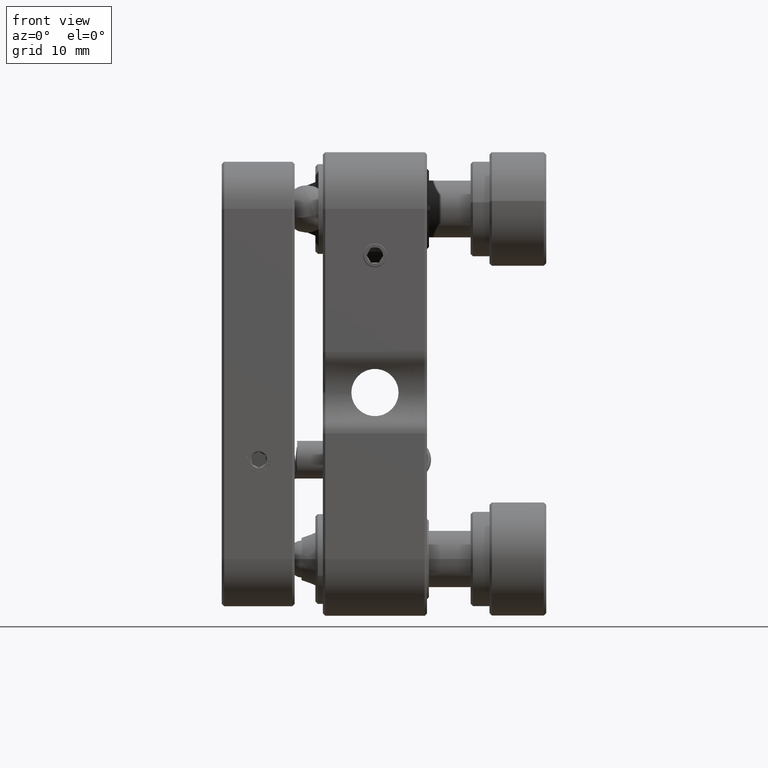
[diagram: clean part render]
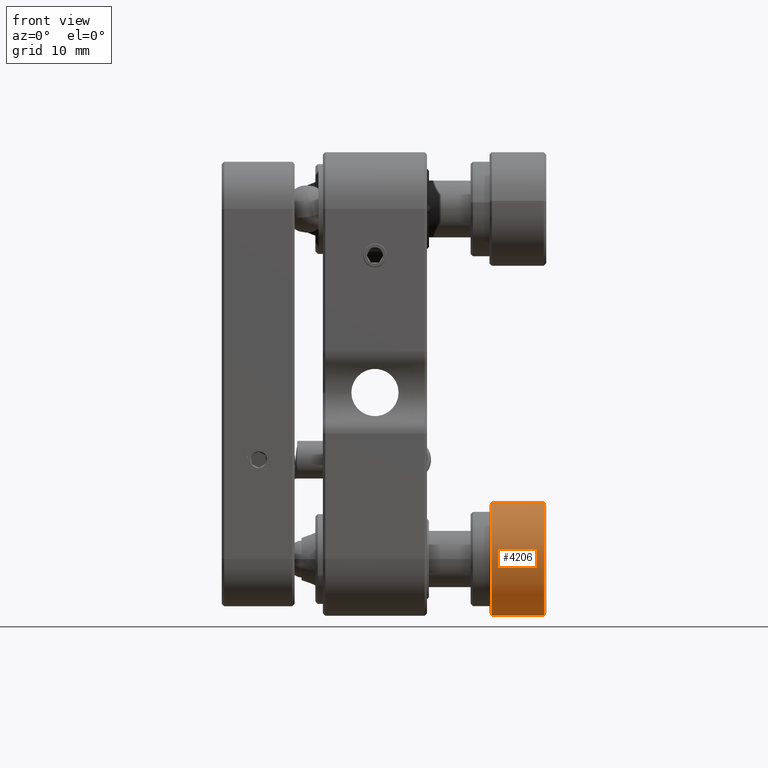
[diagram: same view with one face highlighted and labeled with its STEP entity id]
A machine part, front view. The second image highlights one B-rep face of the part: STEP entity #4206.
In plain terms, the highlighted cylindrical surface (partial cylindrical patch) has radius 6 mm, axis along (1, 0, 0).
Its self-contained STEP definition (entity closure, byte-faithful):
#135 = VECTOR ( 'NONE', #46466, 1000.000000000000000 ) ;
#174 = AXIS2_PLACEMENT_3D ( 'NONE', #33496, #63154, #53378 ) ;
#3624 = DIRECTION ( 'NONE',  ( 0.0000000000000000000, 0.1427750200821288340, -0.9897551685343946026 ) ) ;
#4206 = ADVANCED_FACE ( 'NONE', ( #53629 ), #31939, .T. ) ;
#4891 = CIRCLE ( 'NONE', #51820, 6.000000000000093259 ) ;
#4955 = DIRECTION ( 'NONE',  ( 1.000000000000000000, 0.0000000000000000000, 0.0000000000000000000 ) ) ;
#7113 = LINE ( 'NONE', #22043, #135 ) ;
#7268 = CIRCLE ( 'NONE', #174, 6.000000000000093259 ) ;
#7388 = DIRECTION ( 'NONE',  ( 1.000000000000000000, -0.0000000000000000000, -0.0000000000000000000 ) ) ;
#8767 = VERTEX_POINT ( 'NONE', #34682 ) ;
#14044 = ORIENTED_EDGE ( 'NONE', *, *, #55961, .F. ) ;
#14187 = EDGE_CURVE ( 'NONE', #21746, #19180, #7268, .T. ) ;
#18294 = CARTESIAN_POINT ( 'NONE',  ( 12.35735931288067135, -19.35665012049247835, -12.56146898879368834 ) ) ;
#19180 = VERTEX_POINT ( 'NONE', #43466 ) ;
#19821 = CARTESIAN_POINT ( 'NONE',  ( 12.10735931288066958, -17.64334987950690348, -24.43853101120660654 ) ) ;
#21746 = VERTEX_POINT ( 'NONE', #39339 ) ;
#22043 = CARTESIAN_POINT ( 'NONE',  ( 12.10735931288066958, -19.35665012049247835, -12.56146898879368834 ) ) ;
#24228 = EDGE_CURVE ( 'NONE', #24746, #8767, #4891, .T. ) ;
#24746 = VERTEX_POINT ( 'NONE', #18294 ) ;
#26154 = VECTOR ( 'NONE', #4955, 1000.000000000000000 ) ;
#31939 = CYLINDRICAL_SURFACE ( 'NONE', #52969, 6.000000000000093259 ) ;
#33496 = CARTESIAN_POINT ( 'NONE',  ( 17.85735931288066780, -18.49999999999969091, -18.50000000000014921 ) ) ;
#34682 = CARTESIAN_POINT ( 'NONE',  ( 12.35735931288067135, -17.64334987950690348, -24.43853101120660654 ) ) ;
#38610 = ORIENTED_EDGE ( 'NONE', *, *, #44585, .T. ) ;
#39339 = CARTESIAN_POINT ( 'NONE',  ( 17.85735931288066780, -17.64334987950691769, -24.43853101120651417 ) ) ;
#42728 = DIRECTION ( 'NONE',  ( 0.0000000000000000000, -0.1427750200821288340, 0.9897551685343946026 ) ) ;
#43466 = CARTESIAN_POINT ( 'NONE',  ( 17.85735931288066780, -19.35665012049246414, -12.56146898879378071 ) ) ;
#44461 = ORIENTED_EDGE ( 'NONE', *, *, #24228, .T. ) ;
#44585 = EDGE_CURVE ( 'NONE', #8767, #21746, #51892, .T. ) ;
#46466 = DIRECTION ( 'NONE',  ( 1.000000000000000000, 0.0000000000000000000, 0.0000000000000000000 ) ) ;
#46862 = DIRECTION ( 'NONE',  ( 1.000000000000000000, 0.0000000000000000000, 0.0000000000000000000 ) ) ;
#51820 = AXIS2_PLACEMENT_3D ( 'NONE', #57573, #7388, #42728 ) ;
#51892 = LINE ( 'NONE', #19821, #26154 ) ;
#52969 = AXIS2_PLACEMENT_3D ( 'NONE', #57549, #46862, #3624 ) ;
#53378 = DIRECTION ( 'NONE',  ( 0.0000000000000000000, -0.1427750200821288340, 0.9897551685343946026 ) ) ;
#53629 = FACE_OUTER_BOUND ( 'NONE', #60820, .T. ) ;
#55961 = EDGE_CURVE ( 'NONE', #24746, #19180, #7113, .T. ) ;
#57549 = CARTESIAN_POINT ( 'NONE',  ( 12.10735931288066958, -18.49999999999969091, -18.50000000000014921 ) ) ;
#57573 = CARTESIAN_POINT ( 'NONE',  ( 12.35735931288067135, -18.49999999999969091, -18.50000000000014921 ) ) ;
#60820 = EDGE_LOOP ( 'NONE', ( #14044, #44461, #38610, #62810 ) ) ;
#62810 = ORIENTED_EDGE ( 'NONE', *, *, #14187, .T. ) ;
#63154 = DIRECTION ( 'NONE',  ( -1.000000000000000000, 0.0000000000000000000, 0.0000000000000000000 ) ) ;